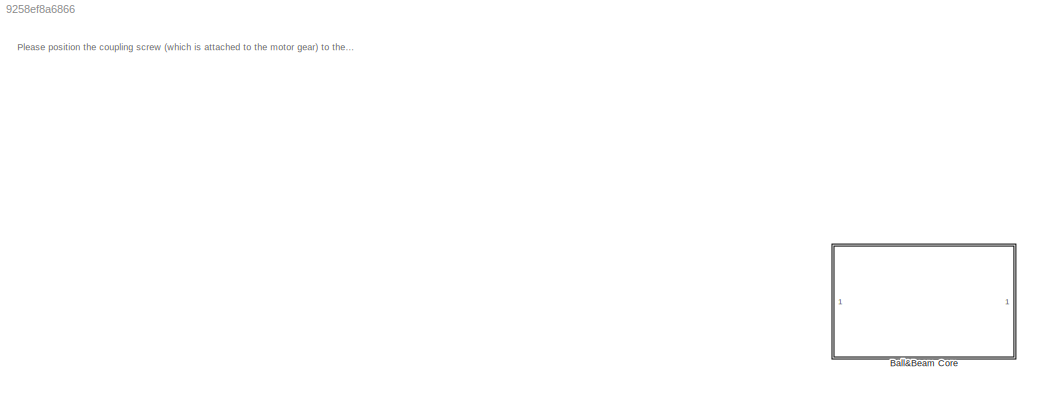
MODEL slx_9258ef8a6866
KIND model
CONFIG AbsTol = auto
CONFIG EnableMultiTasking = on
CONFIG FixedStep = 0.002
CONFIG MaxStep = auto
CONFIG MinStep = auto
CONFIG RelTol = 1e-3
CONFIG SampleTimeConstraint = Unconstrained
CONFIG SolverName = FixedStepAuto
CONFIG StartTime = 0.0
CONFIG StopTime = inf
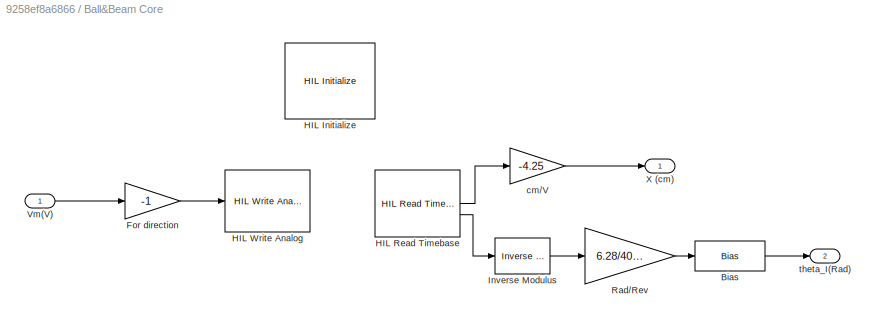
BLOCK [SubSystem] Ball&Beam Core
BLOCK [Bias] Ball&Beam Core/Bias
  Bias = -0.9769
  SaturateOnIntegerOverflow = off
BLOCK [Gain] Ball&Beam Core/For direction
  Gain = -1
BLOCK [Reference] Ball&Beam Core/HIL Initialize  REF=quarc_library/Data Acquisition/Generic/Configuration/HIL Initialize
  AttributesFormatString = %<object_name> (%<board_type>-%<board_number>)
  SourceBlock = quarc_library/Data Acquisition/Generic/Configuration/HIL Initialize
  SourceProductName = QUARC Targets
  SourceType = HIL Initialize
  UserDataPersistent = on
BLOCK [Reference] Ball&Beam Core/HIL Read Timebase  REF=quarc_library/Data Acquisition/Generic/Timebases/HIL Read
Timebase
  AttributesFormatString = (%<object_name>)
  SourceBlock = quarc_library/Data Acquisition/Generic/Timebases/HIL Read\nTimebase
  SourceProductName = QUARC Targets
  SourceType = HIL Read Timebase
  UserDataPersistent = on
BLOCK [Reference] Ball&Beam Core/HIL Write Analog  REF=quarc_library/Data Acquisition/Generic/Immediate I//O/HIL Write Analog
  AttributesFormatString = (%<object_name>)
  SourceBlock = quarc_library/Data Acquisition/Generic/Immediate I//O/HIL Write Analog
  SourceProductName = QUARC Targets
  SourceType = HIL Write Analog
  UserDataPersistent = on
BLOCK [Reference] Ball&Beam Core/Inverse Modulus  REF=quarc_library/Discontinuities/Inverse
Modulus
  SourceBlock = quarc_library/Discontinuities/Inverse\nModulus
  SourceProductName = QUARC Targets
  SourceType = Inverse Modulus
BLOCK [Gain] Ball&Beam Core/Rad//Rev
  Gain = 6.28/4096
BLOCK [Inport] Ball&Beam Core/Vm(V)
BLOCK [Outport] Ball&Beam Core/X (cm)
BLOCK [Gain] Ball&Beam Core/cm//V
  Gain = -4.25
BLOCK [Outport] Ball&Beam Core/theta_I(Rad)
  Port = 2
ANNOTATION (root): Please position the coupling screw (which is attached to the motor gear) to the lowest position before starting this program!
LINE Ball&Beam Core/Bias:1 -> Ball&Beam Core/theta_I(Rad):1
LINE Ball&Beam Core/For direction:1 -> Ball&Beam Core/HIL Write Analog:1
LINE Ball&Beam Core/HIL Read Timebase:1 -> Ball&Beam Core/cm//V:1
LINE Ball&Beam Core/HIL Read Timebase:2 -> Ball&Beam Core/Inverse Modulus:1
LINE Ball&Beam Core/Inverse Modulus:1 -> Ball&Beam Core/Rad//Rev:1
LINE Ball&Beam Core/Rad//Rev:1 -> Ball&Beam Core/Bias:1
LINE Ball&Beam Core/Vm(V):1 -> Ball&Beam Core/For direction:1
LINE Ball&Beam Core/cm//V:1 -> Ball&Beam Core/X (cm):1
